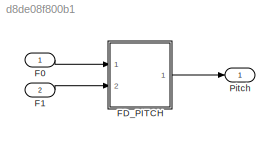
MODEL slx_d8de08f800b1
KIND model
CONFIG AbsTol = auto
CONFIG EnableMultiTasking = off
CONFIG FixedStep = auto
CONFIG MaxStep = auto
CONFIG MinStep = auto
CONFIG RelTol = 1e-3
CONFIG SampleTimeConstraint = Unconstrained
CONFIG Solver = VariableStepAuto
CONFIG SolverName = VariableStepAuto
CONFIG StartTime = 0.0
CONFIG StopTime = 10.0
BLOCK [Inport] F0
  IconDisplay = Port number
BLOCK [Inport] F1
  IconDisplay = Port number
  Port = 2
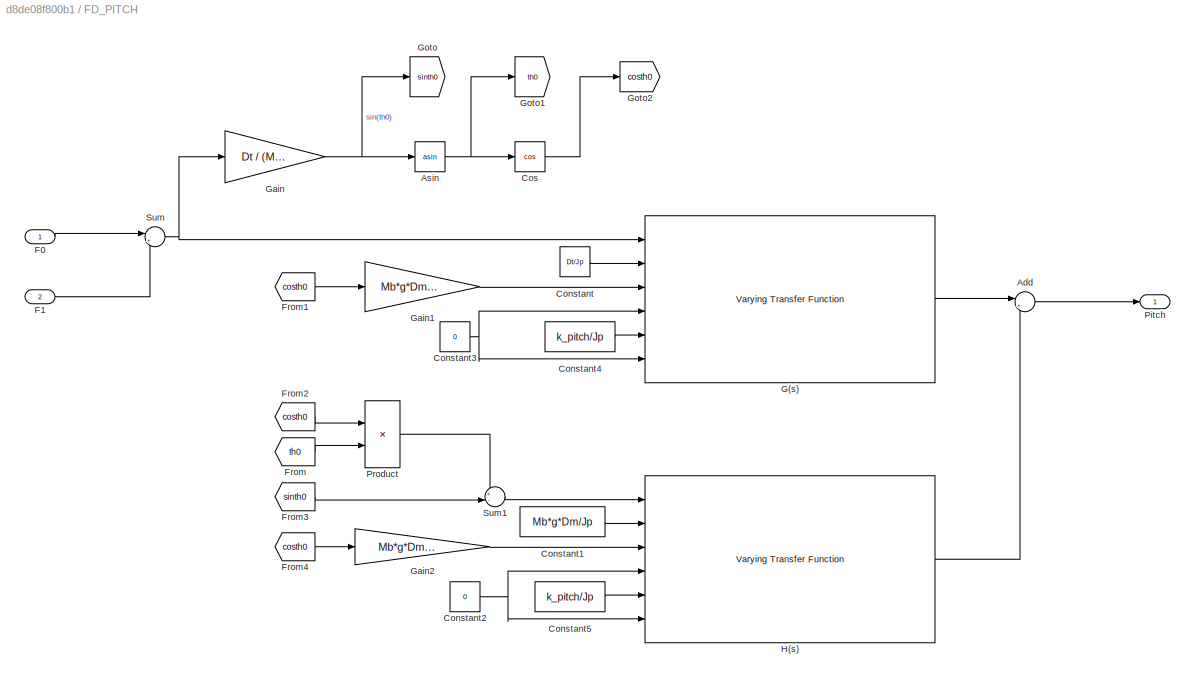
BLOCK [SubSystem] FD_PITCH
  Ports = [2, 1]
  RequestExecContextInheritance = off
BLOCK [Sum] FD_PITCH/Add
  IconShape = round
  InputSameDT = off
  Inputs = |++
  OutDataTypeStr = Inherit: Inherit via internal rule
  Ports = [2, 1]
  SaturateOnIntegerOverflow = off
BLOCK [Trigonometry] FD_PITCH/Asin
  Operator = asin
  Ports = [1, 1]
BLOCK [Constant] FD_PITCH/Constant
  Value = Dt/Jp
BLOCK [Constant] FD_PITCH/Constant1
  Value = Mb*g*Dm/Jp
BLOCK [Constant] FD_PITCH/Constant2
  Value = 0
BLOCK [Constant] FD_PITCH/Constant3
  Value = 0
BLOCK [Constant] FD_PITCH/Constant4
  Value = k_pitch/Jp
BLOCK [Constant] FD_PITCH/Constant5
  Value = k_pitch/Jp
BLOCK [Trigonometry] FD_PITCH/Cos
  Operator = cos
  Ports = [1, 1]
BLOCK [Inport] FD_PITCH/F0
  IconDisplay = Port number
BLOCK [Inport] FD_PITCH/F1
  IconDisplay = Port number
  Port = 2
BLOCK [From] FD_PITCH/From
  GotoTag = th0
BLOCK [From] FD_PITCH/From1
  GotoTag = costh0
BLOCK [From] FD_PITCH/From2
  GotoTag = costh0
BLOCK [From] FD_PITCH/From3
  GotoTag = sinth0
BLOCK [From] FD_PITCH/From4
  GotoTag = costh0
BLOCK [Reference] FD_PITCH/G(s)  REF=cstblocks/Linear Parameter Varying/Varying Transfer Function
  Ports = [6, 1]
  SourceBlock = cstblocks/Linear Parameter Varying/Varying Transfer Function
  SourceProductBaseCode = CT
  SourceProductName = Control System Toolbox
  SourceType = Varying Transfer Function
BLOCK [Gain] FD_PITCH/Gain
  Gain = Dt / (Mb*g*Dm)
  OutDataTypeStr = Inherit: Inherit via internal rule
  ParamDataTypeStr = Inherit: Inherit via internal rule
  SaturateOnIntegerOverflow = off
BLOCK [Gain] FD_PITCH/Gain1
  Gain = Mb*g*Dm/Jp
  OutDataTypeStr = Inherit: Inherit via internal rule
  ParamDataTypeStr = Inherit: Inherit via internal rule
  SaturateOnIntegerOverflow = off
BLOCK [Gain] FD_PITCH/Gain2
  Gain = Mb*g*Dm/Jp
  OutDataTypeStr = Inherit: Inherit via internal rule
  ParamDataTypeStr = Inherit: Inherit via internal rule
  SaturateOnIntegerOverflow = off
BLOCK [Goto] FD_PITCH/Goto
  GotoTag = sinth0
BLOCK [Goto] FD_PITCH/Goto1
  GotoTag = th0
BLOCK [Goto] FD_PITCH/Goto2
  GotoTag = costh0
BLOCK [Reference] FD_PITCH/H(s)  REF=cstblocks/Linear Parameter Varying/Varying Transfer Function
  Ports = [6, 1]
  SourceBlock = cstblocks/Linear Parameter Varying/Varying Transfer Function
  SourceProductBaseCode = CT
  SourceProductName = Control System Toolbox
  SourceType = Varying Transfer Function
BLOCK [Outport] FD_PITCH/Pitch
  IconDisplay = Port number
BLOCK [Product] FD_PITCH/Product
  InputSameDT = off
  OutDataTypeStr = Inherit: Inherit via internal rule
  Ports = [2, 1]
  RndMeth = Floor
  SaturateOnIntegerOverflow = off
BLOCK [Sum] FD_PITCH/Sum
  IconShape = round
  InputSameDT = off
  Inputs = |+-
  OutDataTypeStr = Inherit: Inherit via internal rule
  Ports = [2, 1]
  SaturateOnIntegerOverflow = off
BLOCK [Sum] FD_PITCH/Sum1
  IconShape = round
  InputSameDT = off
  Inputs = +-|
  OutDataTypeStr = Inherit: Inherit via internal rule
  Ports = [2, 1]
  SaturateOnIntegerOverflow = off
BLOCK [Outport] Pitch
  IconDisplay = Port number
LINE F0:1 -> FD_PITCH:1
LINE F1:1 -> FD_PITCH:2
LINE FD_PITCH/Add:1 -> FD_PITCH/Pitch:1
NET FD_PITCH/Asin:1 -> FD_PITCH/Cos:1, FD_PITCH/Goto1:1
LINE FD_PITCH/Constant1:1 -> FD_PITCH/H(s):2
NET FD_PITCH/Constant2:1 -> FD_PITCH/H(s):4, FD_PITCH/H(s):6
NET FD_PITCH/Constant3:1 -> FD_PITCH/G(s):4, FD_PITCH/G(s):6
LINE FD_PITCH/Constant4:1 -> FD_PITCH/G(s):5
LINE FD_PITCH/Constant5:1 -> FD_PITCH/H(s):5
LINE FD_PITCH/Constant:1 -> FD_PITCH/G(s):2
LINE FD_PITCH/Cos:1 -> FD_PITCH/Goto2:1
LINE FD_PITCH/F0:1 -> FD_PITCH/Sum:1
LINE FD_PITCH/F1:1 -> FD_PITCH/Sum:2
LINE FD_PITCH/From1:1 -> FD_PITCH/Gain1:1
LINE FD_PITCH/From2:1 -> FD_PITCH/Product:1
LINE FD_PITCH/From3:1 -> FD_PITCH/Sum1:2
LINE FD_PITCH/From4:1 -> FD_PITCH/Gain2:1
LINE FD_PITCH/From:1 -> FD_PITCH/Product:2
LINE FD_PITCH/G(s):1 -> FD_PITCH/Add:1
LINE FD_PITCH/Gain1:1 -> FD_PITCH/G(s):3
LINE FD_PITCH/Gain2:1 -> FD_PITCH/H(s):3
NET FD_PITCH/Gain:1 -> FD_PITCH/Asin:1, FD_PITCH/Goto:1
LINE FD_PITCH/H(s):1 -> FD_PITCH/Add:2
LINE FD_PITCH/Product:1 -> FD_PITCH/Sum1:1
LINE FD_PITCH/Sum1:1 -> FD_PITCH/H(s):1
NET FD_PITCH/Sum:1 -> FD_PITCH/G(s):1, FD_PITCH/Gain:1
LINE FD_PITCH:1 -> Pitch:1
note: NET lines group one-source signal fan-out (src -> all destinations, sorted); 1:1 wires keep LINE
